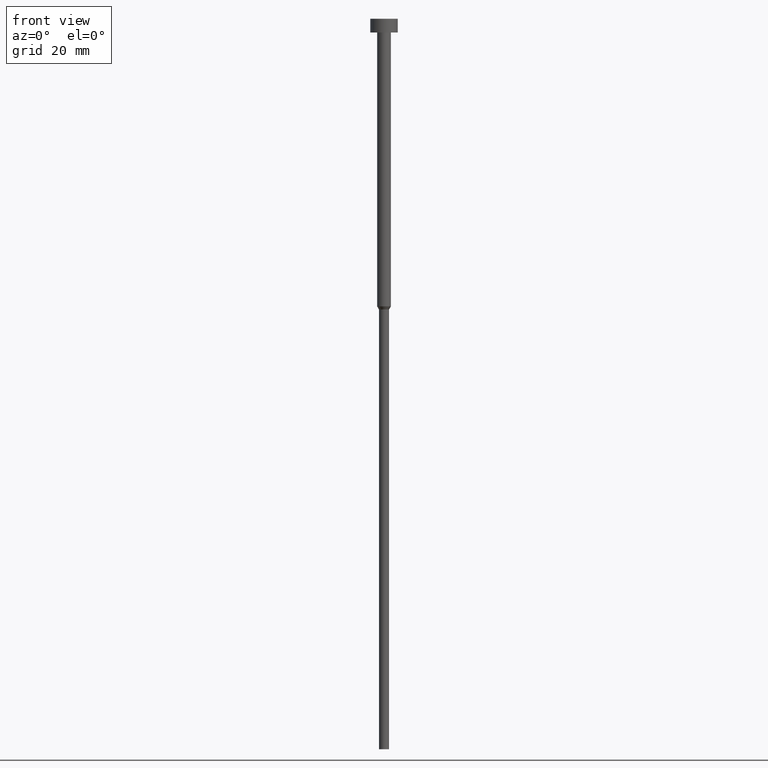
[diagram: clean part render]
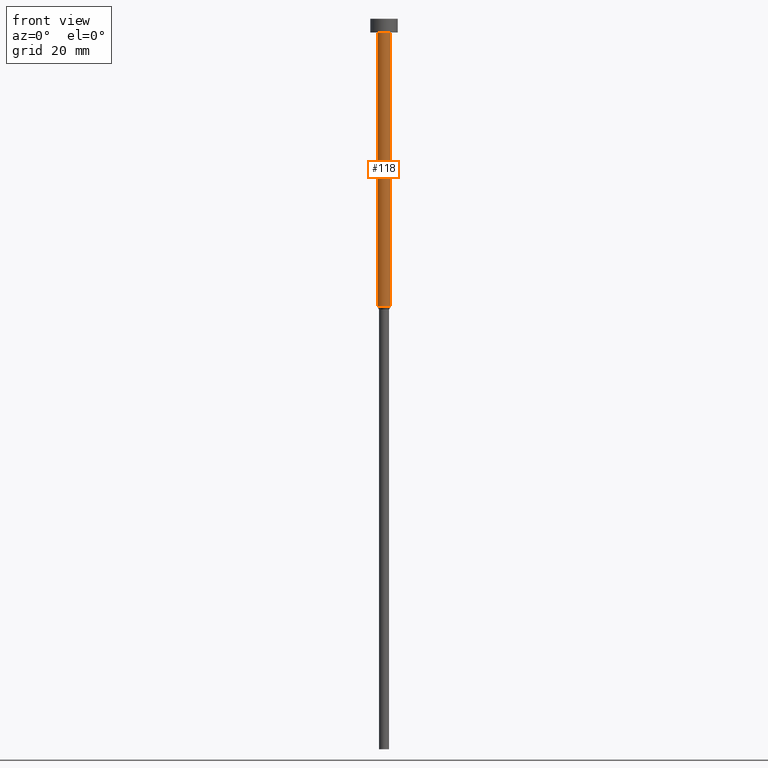
[diagram: same view with one face highlighted and labeled with its STEP entity id]
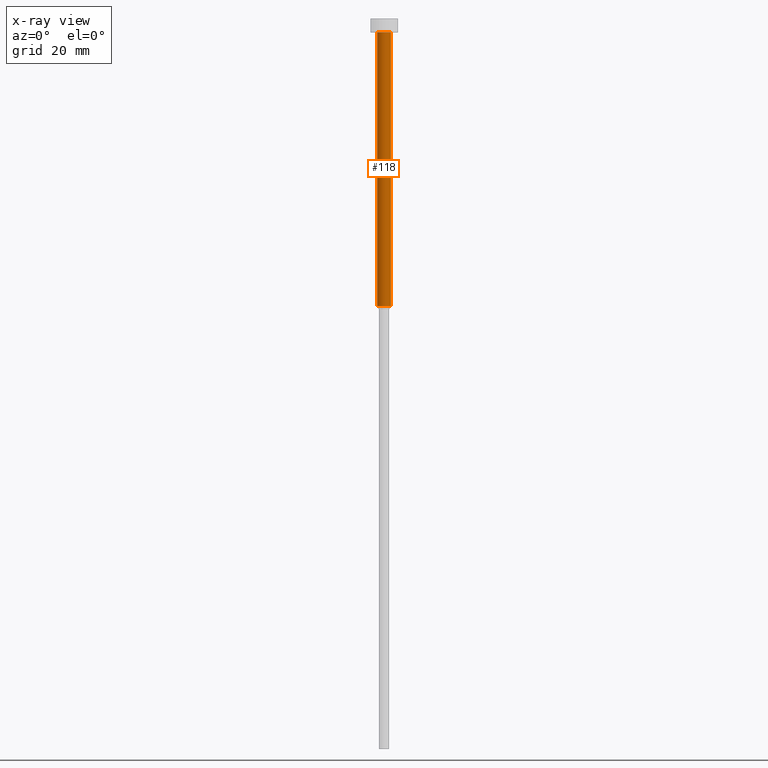
[diagram: x-ray of the same camera — body ghosted, the highlighted face saturated]
A machine part, front view. The second image highlights one B-rep face of the part: STEP entity #118.
The next image is the same camera in x-ray: the body ghosted, the highlighted face saturated — about 0% of this face is hidden behind the body in this view.
In plain terms, the highlighted cylindrical surface (edge-blend (fillet) strip) has radius 1.5 mm, axis along (-0, -0, 1).
Its self-contained STEP definition (entity closure, byte-faithful):
#13 = DIRECTION ( 'NONE',  ( 1.000000000000000000, 0.000000000000000000, 0.000000000000000000 ) ) ;
#22 = EDGE_CURVE ( 'NONE', #275, #248, #87, .T. ) ;
#53 = DIRECTION ( 'NONE',  ( -0.000000000000000000, -0.000000000000000000, 1.000000000000000000 ) ) ;
#54 = VECTOR ( 'NONE', #217, 1000.000000000000000 ) ;
#60 = CARTESIAN_POINT ( 'NONE',  ( 1.500000000000000000, 0.000000000000000000, -63.00000000000000000 ) ) ;
#65 = EDGE_CURVE ( 'NONE', #248, #330, #103, .T. ) ;
#87 = CIRCLE ( 'NONE', #134, 1.500000000000000000 ) ;
#92 = DIRECTION ( 'NONE',  ( -0.000000000000000000, -0.000000000000000000, 1.000000000000000000 ) ) ;
#99 = EDGE_CURVE ( 'NONE', #276, #330, #161, .T. ) ;
#103 = LINE ( 'NONE', #274, #54 ) ;
#111 = AXIS2_PLACEMENT_3D ( 'NONE', #285, #92, #206 ) ;
#118 = ADVANCED_FACE ( 'NONE', ( #306 ), #149, .T. ) ;
#131 = ORIENTED_EDGE ( 'NONE', *, *, #99, .F. ) ;
#134 = AXIS2_PLACEMENT_3D ( 'NONE', #164, #53, #331 ) ;
#149 = CYLINDRICAL_SURFACE ( 'NONE', #111, 1.500000000000000000 ) ;
#161 = CIRCLE ( 'NONE', #301, 1.500000000000000000 ) ;
#164 = CARTESIAN_POINT ( 'NONE',  ( 0.000000000000000000, 0.000000000000000000, -63.00000000000000000 ) ) ;
#191 = LINE ( 'NONE', #238, #279 ) ;
#206 = DIRECTION ( 'NONE',  ( 1.000000000000000000, 0.000000000000000000, 0.000000000000000000 ) ) ;
#217 = DIRECTION ( 'NONE',  ( -0.000000000000000000, -0.000000000000000000, 1.000000000000000000 ) ) ;
#232 = CARTESIAN_POINT ( 'NONE',  ( 0.000000000000000000, 0.000000000000000000, -3.000000000000000888 ) ) ;
#238 = CARTESIAN_POINT ( 'NONE',  ( -1.500000000000000000, 1.836970198721029934E-16, 0.000000000000000000 ) ) ;
#239 = CARTESIAN_POINT ( 'NONE',  ( -1.500000000000000000, 1.836970198721029934E-16, -63.00000000000000000 ) ) ;
#248 = VERTEX_POINT ( 'NONE', #60 ) ;
#266 = CARTESIAN_POINT ( 'NONE',  ( 1.500000000000000000, 0.000000000000000000, -3.000000000000000888 ) ) ;
#274 = CARTESIAN_POINT ( 'NONE',  ( 1.500000000000000000, 0.000000000000000000, 0.000000000000000000 ) ) ;
#275 = VERTEX_POINT ( 'NONE', #239 ) ;
#276 = VERTEX_POINT ( 'NONE', #344 ) ;
#279 = VECTOR ( 'NONE', #291, 1000.000000000000000 ) ;
#284 = EDGE_CURVE ( 'NONE', #275, #276, #191, .T. ) ;
#285 = CARTESIAN_POINT ( 'NONE',  ( 0.000000000000000000, 0.000000000000000000, 0.000000000000000000 ) ) ;
#287 = DIRECTION ( 'NONE',  ( -0.000000000000000000, -0.000000000000000000, 1.000000000000000000 ) ) ;
#291 = DIRECTION ( 'NONE',  ( -0.000000000000000000, -0.000000000000000000, 1.000000000000000000 ) ) ;
#294 = ORIENTED_EDGE ( 'NONE', *, *, #22, .T. ) ;
#301 = AXIS2_PLACEMENT_3D ( 'NONE', #232, #287, #13 ) ;
#303 = EDGE_LOOP ( 'NONE', ( #322, #294, #324, #131 ) ) ;
#306 = FACE_OUTER_BOUND ( 'NONE', #303, .T. ) ;
#322 = ORIENTED_EDGE ( 'NONE', *, *, #284, .F. ) ;
#324 = ORIENTED_EDGE ( 'NONE', *, *, #65, .T. ) ;
#330 = VERTEX_POINT ( 'NONE', #266 ) ;
#331 = DIRECTION ( 'NONE',  ( 1.000000000000000000, 0.000000000000000000, 0.000000000000000000 ) ) ;
#344 = CARTESIAN_POINT ( 'NONE',  ( -1.500000000000000000, 1.836970198721029934E-16, -3.000000000000000888 ) ) ;